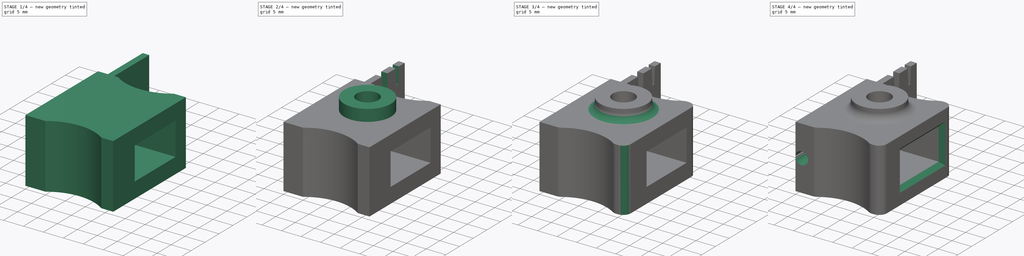
[diagram: build sequence overview — one tinted view per stage of 4, left to right]
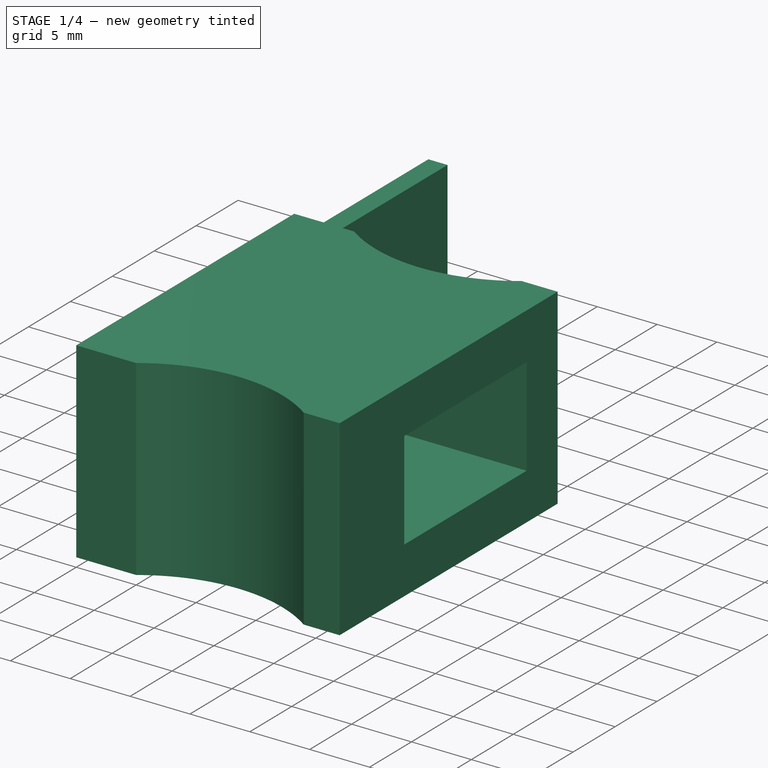
[diagram: stage 1 of 4 — iso view after this stage's code; geometry added in this stage tinted green]
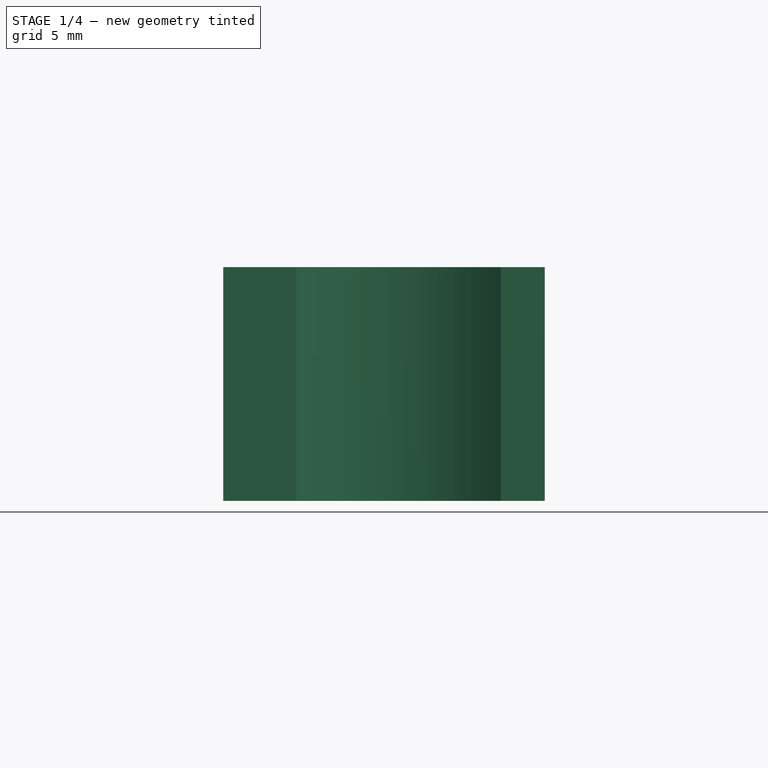
[diagram: stage 1 of 4 — front view after this stage's code; geometry added in this stage tinted green]
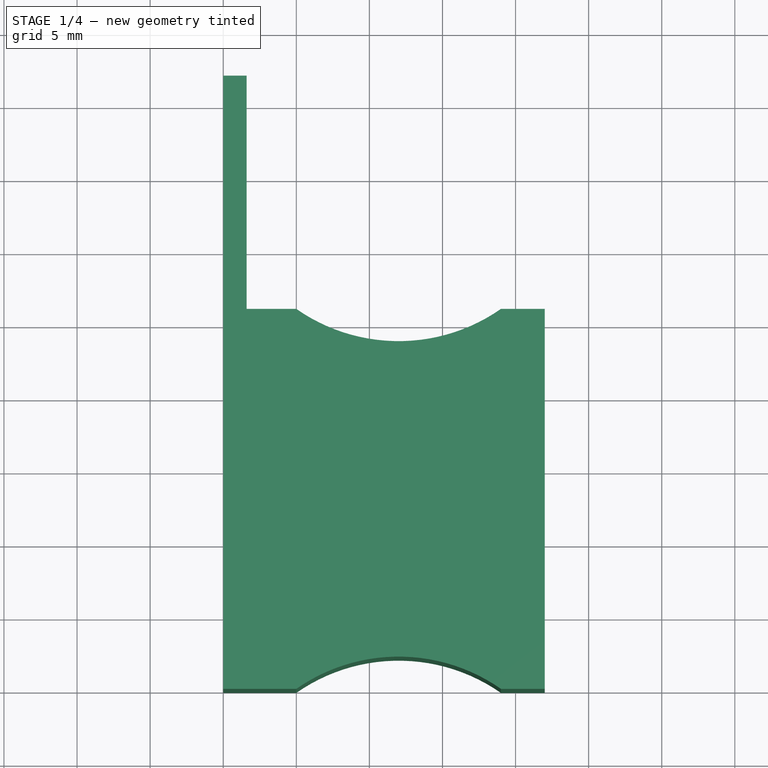
[diagram: stage 1 of 4 — top view after this stage's code; geometry added in this stage tinted green]
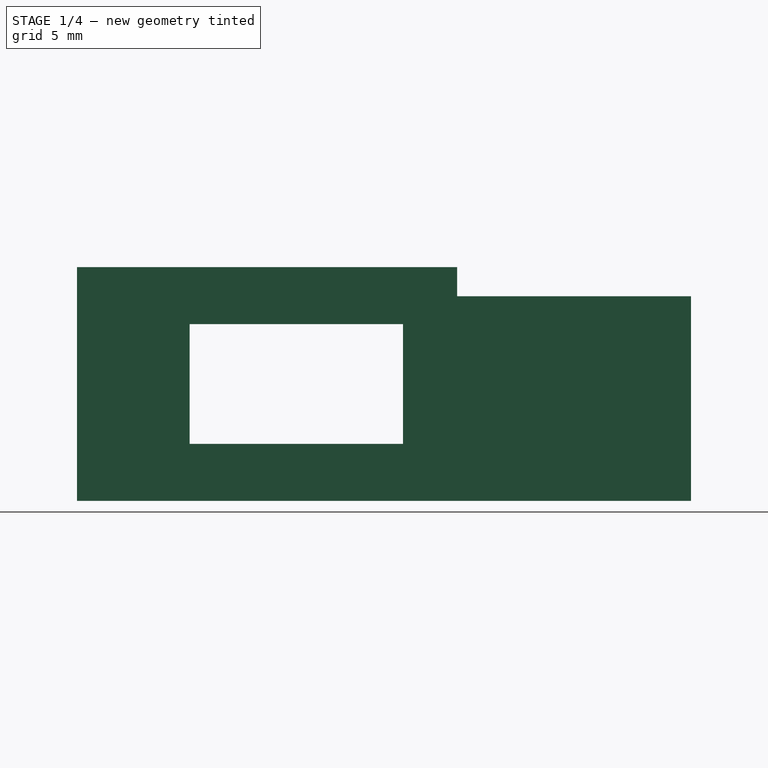
[diagram: stage 1 of 4 — right view after this stage's code; geometry added in this stage tinted green]
FCSTD DOCUMENT  (FreeCAD 0.20R29410 (Git))
Label: Tool_Slider_R5_repaired
License: All rights reserved
LicenseURL: http://en.wikipedia.org/wiki/All_rights_reserved
objects: Sketcher::SketchObject×7, PartDesign::Plane×5, PartDesign::Pocket×5, PartDesign::Chamfer×3, PartDesign::Pad×2, PartDesign::Fillet×2, PartDesign::Body×1
note: 37 computed .brp shape members not serialized (recipe doc carries the construction recipe); baked Part::Feature solids carry a one-line shape summary decoded from their .brp

FEATURE [Sketcher::SketchObject] Sketch
  FullyConstrained = true
  MapMode = 5
  Support = -> [XY_Plane]
  sketch-geometry (11):
    g0: LineSegment StartX=5 StartY=26 StartZ=0 EndX=1.6 EndY=26 EndZ=0
    g1: LineSegment StartX=1.6 StartY=26 StartZ=0 EndX=1.6 EndY=42 EndZ=0
    g2: LineSegment StartX=1.6 StartY=42 StartZ=0 EndX=0 EndY=42 EndZ=0
    g3: LineSegment StartX=0 StartY=42 StartZ=0 EndX=0 EndY=0 EndZ=0
    g4: LineSegment StartX=0 StartY=-1.8e-15 StartZ=0 EndX=5 EndY=-1.8e-15 EndZ=0
    g5: LineSegment StartX=19 StartY=26 StartZ=0 EndX=22 EndY=26 EndZ=0
    g6: LineSegment StartX=22 StartY=26 StartZ=0 EndX=22 EndY=0 EndZ=0
    g7: LineSegment StartX=22 StartY=0 StartZ=0 EndX=19 EndY=0 EndZ=0
    g8: ArcOfCircle CenterX=12 CenterY=36 CenterZ=0 NormalX=0 NormalY=0 NormalZ=1 AngleXU=0 Radius=12.2066 StartAngle=4.10166 EndAngle=5.32311
    g9: ArcOfCircle CenterX=12 CenterY=-10 CenterZ=0 NormalX=0 NormalY=0 NormalZ=1 AngleXU=0 Radius=12.2066 StartAngle=0.96007 EndAngle=2.18152
    g10: LineSegment StartX=22 StartY=26 StartZ=0 EndX=0 EndY=26 EndZ=0
  constraints (34):
    c: Coincident(g0,g1)
    c: Vertical(g1)
    c: Coincident(g1,g2)
    c: Horizontal(g2)
    c: Coincident(g2,g3)
    c: Vertical(g3)
    c: Coincident(g3,g4)
    c: Horizontal(g4)
    c: Horizontal(g5)
    c: Coincident(g5,g6)
    c: Vertical(g6)
    c: Coincident(g6,g7)
    c: Horizontal(g7)
    c: Horizontal(g0)
    c: Coincident(g8,g0)
    c: Coincident(g8,g5)
    c: Coincident(g9,g4)
    c: Coincident(g9,g7)
    c: DistanceY(g1,g1) = 16
    c: DistanceY(g3,g3) = 42
    c: DistanceX(g2,g2) = 1.6
    c: DistanceX(g4,g4) = 5
    c: DistanceX(g3,g6) = 22
    c: DistanceX(g2,g0) = 5
    c: DistanceX(g0,g5) = 14
    c: DistanceX(g4,g7) = 14
    c: DistanceY(g9,g7) = 10
    c: DistanceY(g5,g8) = 10
    c: Coincident(g3,g-1)
    c: PointOnObject(g6,g-1)
    c: Coincident(g10,g5)
    c: PointOnObject(g10,g3)
    c: Horizontal(g10)
    c: PointOnObject(g0,g10)
FEATURE [PartDesign::Pad] Pad
  Direction = (0,0,1)
  Length = 16
  Length2 = 10
  Profile = -> Sketch
  ReferenceAxis = -> Sketch [N_Axis]
  Refine = true
  Type = 0
FEATURE [PartDesign::Plane] DatumPlane
  Length = 60
  MapMode = 5
  Placement = pos=(22,0,0) rot=(0.57735,0.57735,0.57735;2.0944rad)
  ResizeMode = 0
  Support = -> [Pad]
  Width = 60
FEATURE [Sketcher::SketchObject] Sketch001
  ExternalGeometry = -> [Pad]
  FullyConstrained = true
  MapMode = 5
  Placement = pos=(22,0,0) rot=(0.57735,0.57735,0.57735;2.0944rad)
  Support = -> [Pad]
  sketch-geometry (5):
    g0: LineSegment StartX=7.7 StartY=12.1 StartZ=0 EndX=22.3 EndY=12.1 EndZ=0
    g1: LineSegment StartX=22.3 StartY=12.1 StartZ=0 EndX=22.3 EndY=3.9 EndZ=0
    g2: LineSegment StartX=22.3 StartY=3.9 StartZ=0 EndX=7.7 EndY=3.9 EndZ=0
    g3: LineSegment StartX=7.7 StartY=3.9 StartZ=0 EndX=7.7 EndY=12.1 EndZ=0
    g4: LineSegment StartX=0 StartY=8 StartZ=0 EndX=26 EndY=8 EndZ=0
  constraints (15):
    c: Coincident(g0,g1)
    c: Coincident(g1,g2)
    c: Coincident(g2,g3)
    c: Coincident(g3,g0)
    c: Horizontal(g0)
    c: Horizontal(g2)
    c: Vertical(g3)
    c: PointOnObject(g4,g-6)
    c: PointOnObject(g4,g-5)
    c: Horizontal(g4)
    c: DistanceY(g-6,g4) = 8
    c: DistanceY(g1,g1) = 8.2
    c: DistanceX(g0,g0) = 14.6
    c: DistanceX(g-6,g2) = 7.7
    c: Symmetric(g0,g1,g4)
FEATURE [PartDesign::Pocket] Pocket
  BaseFeature = -> Pad
  Direction = (-1,0,0)
  Length = 5
  Length2 = 5
  Profile = -> Sketch001
  ReferenceAxis = -> Sketch001 [N_Axis]
  Refine = true
  Type = 1
FEATURE [PartDesign::Plane] DatumPlane001  label="Oberseite"
  Length = 60
  MapMode = 5
  Placement = pos=(0,0,16) rot=(0,0,1;0rad)
  ResizeMode = 0
  Support = -> [Pocket]
  Width = 60
FEATURE [Sketcher::SketchObject] Sketch002
  ExternalGeometry = -> [Pocket]
  FullyConstrained = true
  MapMode = 5
  Placement = pos=(0,0,16) rot=(0,0,1;0rad)
  Support = -> [DatumPlane001]
  sketch-geometry (4):
    g0: LineSegment StartX=1.6 StartY=26 StartZ=0 EndX=0 EndY=26 EndZ=0
    g1: LineSegment StartX=0 StartY=26 StartZ=0 EndX=0 EndY=42 EndZ=0
    g2: LineSegment StartX=0 StartY=42 StartZ=0 EndX=1.6 EndY=42 EndZ=0
    g3: LineSegment StartX=1.6 StartY=42 StartZ=0 EndX=1.6 EndY=26 EndZ=0
  constraints (10):
    c: Coincident(g0,g1)
    c: Coincident(g1,g2)
    c: Coincident(g2,g3)
    c: Coincident(g3,g0)
    c: Horizontal(g0)
    c: Horizontal(g2)
    c: Vertical(g1)
    c: Vertical(g3)
    c: Coincident(g0,g-3)
    c: Coincident(g1,g-4)
FEATURE [PartDesign::Pocket] Pocket001
  BaseFeature = -> Pocket
  Direction = (0,0,-1)
  Length = 2
  Length2 = 5
  Profile = -> Sketch002
  ReferenceAxis = -> Sketch002 [N_Axis]
  Refine = true
  Type = 0
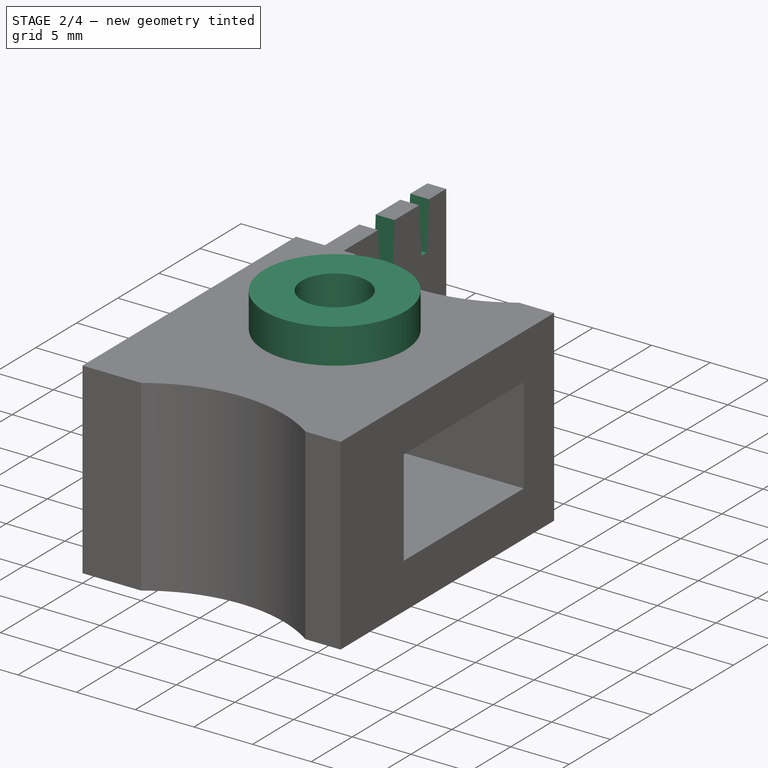
[diagram: stage 2 of 4 — iso view after this stage's code; geometry added in this stage tinted green]
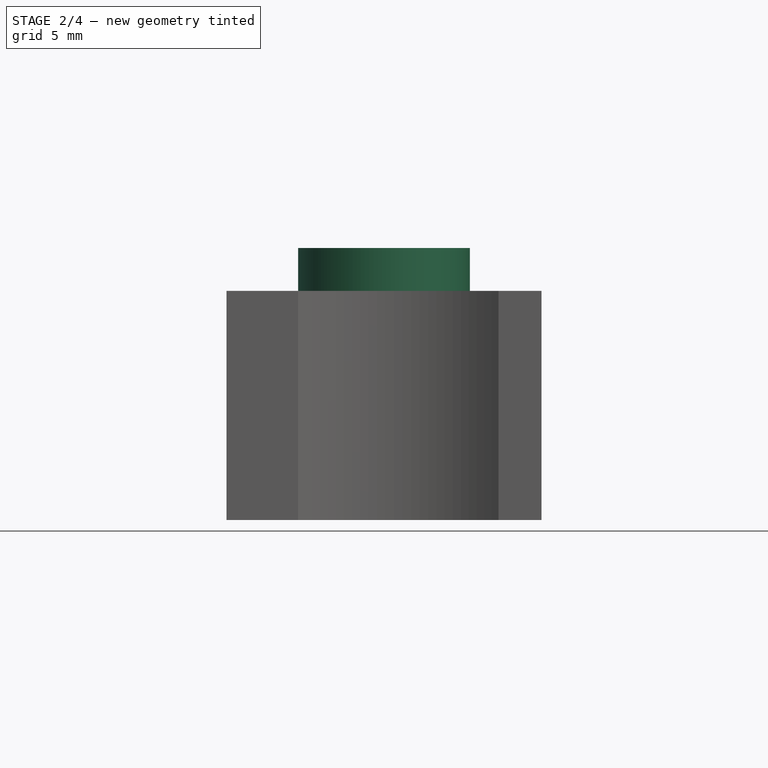
[diagram: stage 2 of 4 — front view after this stage's code; geometry added in this stage tinted green]
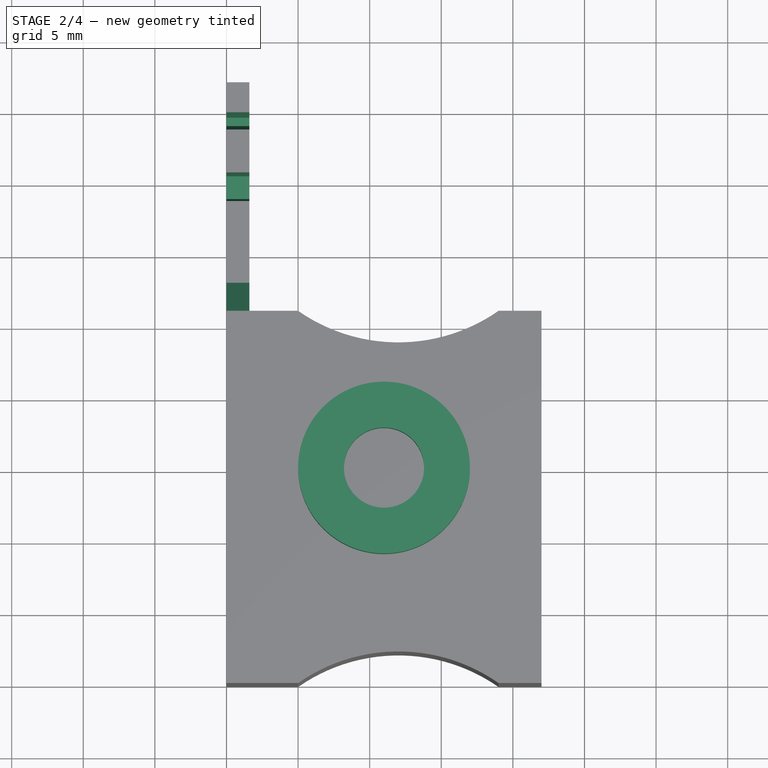
[diagram: stage 2 of 4 — top view after this stage's code; geometry added in this stage tinted green]
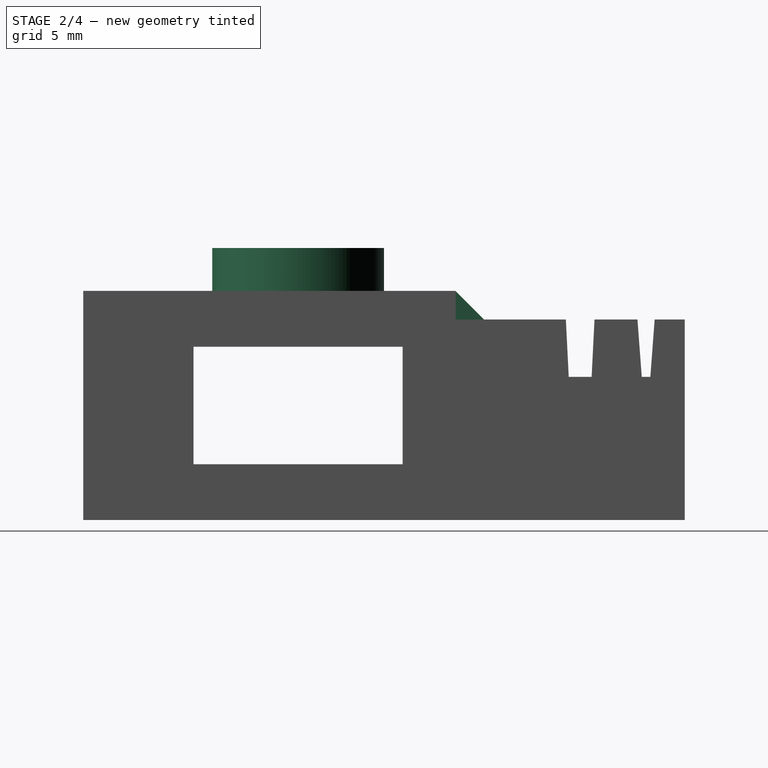
[diagram: stage 2 of 4 — right view after this stage's code; geometry added in this stage tinted green]
FEATURE [PartDesign::Chamfer] Chamfer
  Angle = 45
  Base = -> Pocket001 [Edge41]
  BaseFeature = -> Pocket001
  ChamferType = 0
  FlipDirection = false
  Refine = true
  Size = 1.99
  Size2 = 1
  SupportTransform = false
  UseAllEdges = false
FEATURE [PartDesign::Plane] DatumPlane002  label="Seite Biegefläche"
  Length = 60
  MapMode = 5
  Placement = pos=(1.6,0,0) rot=(0.57735,0.57735,0.57735;2.0944rad)
  ResizeMode = 0
  Support = -> [Chamfer]
  Width = 60
FEATURE [Sketcher::SketchObject] Sketch003
  ExternalGeometry = -> [Chamfer]
  FullyConstrained = true
  MapMode = 5
  Placement = pos=(1.6,0,0) rot=(0.57735,0.57735,0.57735;2.0944rad)
  Support = -> [DatumPlane002]
  sketch-geometry (11):
    g0: LineSegment StartX=26 StartY=10 StartZ=0 EndX=42 EndY=10 EndZ=0
    g1: LineSegment StartX=33.7 StartY=14 StartZ=0 EndX=35.7 EndY=14 EndZ=0
    g2: LineSegment StartX=35.7 StartY=14 StartZ=0 EndX=35.5 EndY=10 EndZ=0
    g3: LineSegment StartX=35.5 StartY=10 StartZ=0 EndX=33.9 EndY=10 EndZ=0
    g4: LineSegment StartX=33.9 StartY=10 StartZ=0 EndX=33.7 EndY=14 EndZ=0
    g5: LineSegment StartX=38.7 StartY=14 StartZ=0 EndX=39.9 EndY=14 EndZ=0
    g6: LineSegment StartX=39.9 StartY=14 StartZ=0 EndX=39.6 EndY=10 EndZ=0
    g7: LineSegment StartX=39.6 StartY=10 StartZ=0 EndX=39 EndY=10 EndZ=0
    g8: LineSegment StartX=39 StartY=10 StartZ=0 EndX=38.7 EndY=14 EndZ=0
    g9: LineSegment StartX=34.7 StartY=14 StartZ=0 EndX=34.7 EndY=10 EndZ=0
    g10: LineSegment StartX=39.3 StartY=14 StartZ=0 EndX=39.3 EndY=10 EndZ=0
  constraints (32):
    c: PointOnObject(g0,g-4)
    c: PointOnObject(g0,g-5)
    c: Horizontal(g0)
    c: DistanceY(g0,g-5) = 4
    c: Horizontal(g1)
    c: Coincident(g1,g2)
    c: Coincident(g2,g3)
    c: Coincident(g3,g4)
    c: Coincident(g4,g1)
    c: Horizontal(g5)
    c: Coincident(g5,g6)
    c: Coincident(g6,g7)
    c: Coincident(g7,g8)
    c: Coincident(g8,g5)
    c: PointOnObject(g1,g-3)
    c: PointOnObject(g5,g-3)
    c: PointOnObject(g2,g0)
    c: PointOnObject(g6,g0)
    c: PointOnObject(g9,g1)
    c: PointOnObject(g9,g3)
    c: PointOnObject(g10,g5)
    c: PointOnObject(g10,g7)
    c: Symmetric(g1,g1,g9)
    c: Symmetric(g3,g2,g9)
    c: Symmetric(g7,g6,g10)
    c: Symmetric(g5,g5,g10)
    c: DistanceX(g5,g5) = 1.2
    c: DistanceX(g7,g6) = 0.6
    c: DistanceX(g3,g2) = 1.6
    c: DistanceX(g1,g1) = 2
    c: DistanceX(g5,g-5) = 2.1
    c: DistanceX(g1,g5) = 3
FEATURE [PartDesign::Pocket] Pocket002
  BaseFeature = -> Chamfer
  Direction = (-1,0,0)
  Length = 5
  Length2 = 5
  Profile = -> Sketch003
  ReferenceAxis = -> Sketch003 [N_Axis]
  Refine = true
  Type = 1
FEATURE [PartDesign::Plane] DatumPlane003  label="Fläche Gewindeaufnahme Messfinger"
  Length = 60
  MapMode = 5
  Placement = pos=(0,-1.8e-15,0) rot=(1,0,0;1.5708rad)
  ResizeMode = 0
  Support = -> [Pocket002]
  Width = 60
FEATURE [Sketcher::SketchObject] Sketch005
  FullyConstrained = true
  MapMode = 5
  Placement = pos=(0,0,16) rot=(0,0,1;0rad)
  Support = -> [DatumPlane001]
  sketch-geometry (2):
    g0: Circle CenterX=11 CenterY=15 CenterZ=0 NormalX=0 NormalY=0 NormalZ=1 AngleXU=0 Radius=2.8
    g1: Circle CenterX=11 CenterY=15 CenterZ=0 NormalX=0 NormalY=0 NormalZ=1 AngleXU=0 Radius=6
  constraints (5):
    c: Coincident(g1,g0)
    c: Diameter(g0) = 5.6
    c: Diameter(g1) = 12
    c: DistanceY(g-1,g0) = 15
    c: DistanceX(g-1,g0) = 11
FEATURE [PartDesign::Pad] Pad001
  BaseFeature = -> Pocket002
  Direction = (0,0,1)
  Length = 3
  Length2 = 10
  Profile = -> Sketch005
  ReferenceAxis = -> Sketch005 [N_Axis]
  Refine = true
  Type = 0
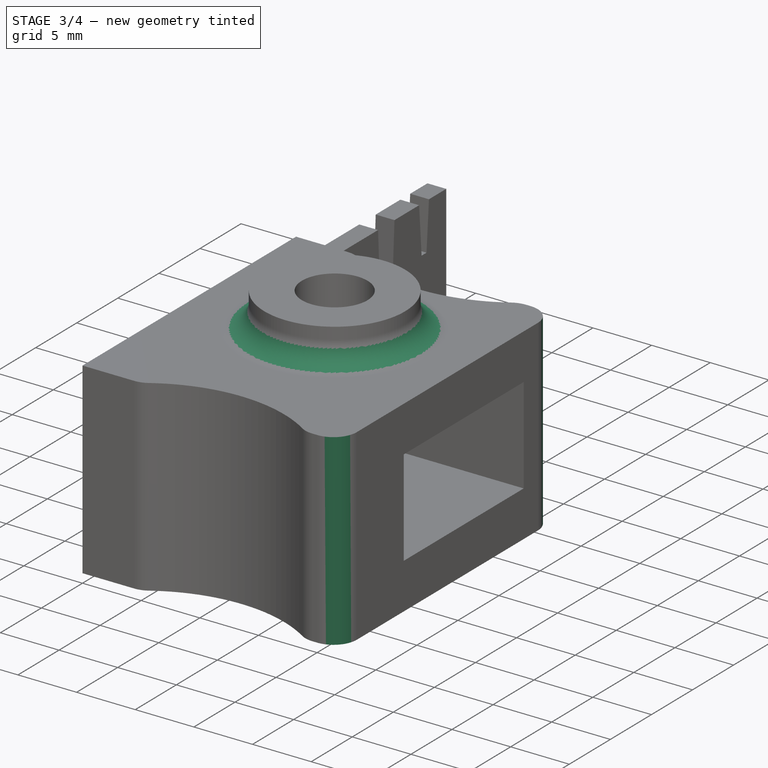
[diagram: stage 3 of 4 — iso view after this stage's code; geometry added in this stage tinted green]
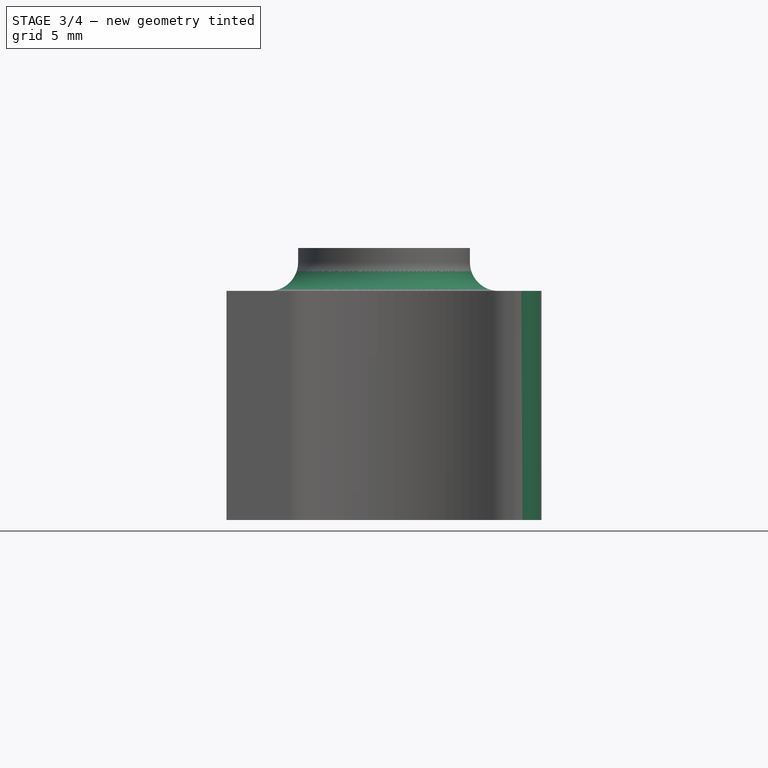
[diagram: stage 3 of 4 — front view after this stage's code; geometry added in this stage tinted green]
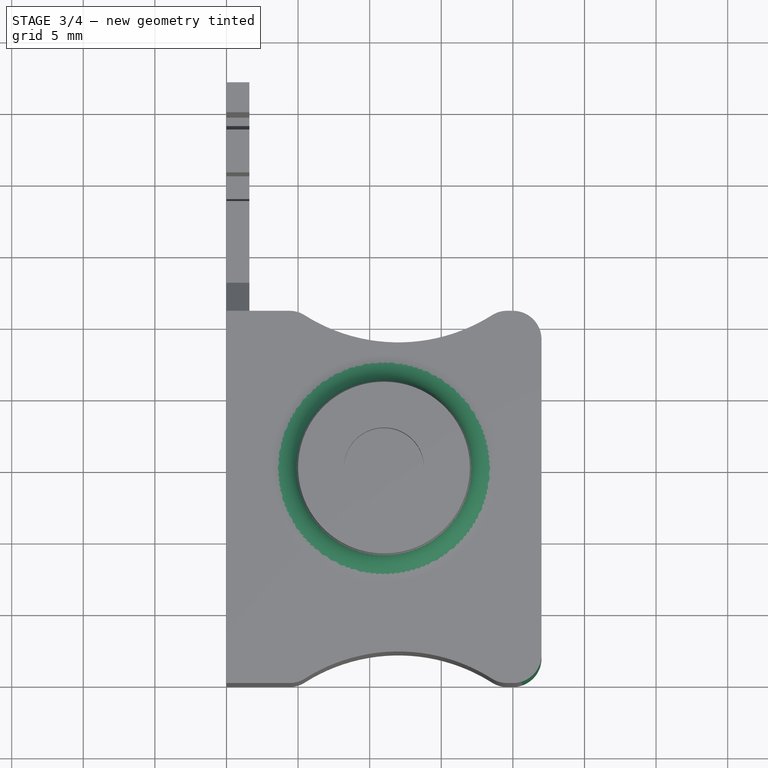
[diagram: stage 3 of 4 — top view after this stage's code; geometry added in this stage tinted green]
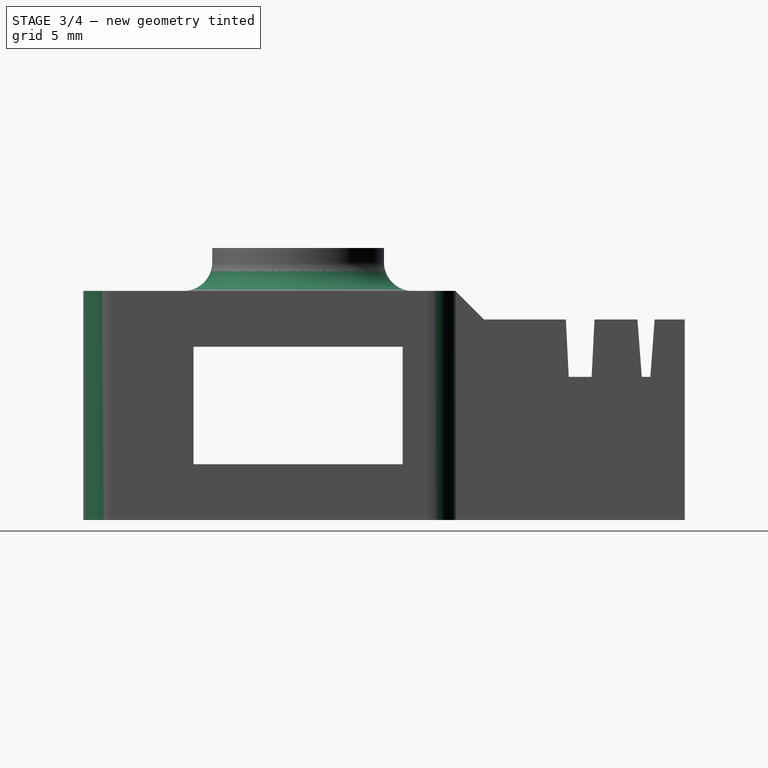
[diagram: stage 3 of 4 — right view after this stage's code; geometry added in this stage tinted green]
FEATURE [Sketcher::SketchObject] Sketch006
  FullyConstrained = false
  MapMode = 5
  Placement = pos=(0,0,16) rot=(0,0,1;0rad)
  Support = -> [DatumPlane001]
  sketch-geometry (7):
    g0: LineSegment StartX=15.8497 StartY=15 StartZ=0 EndX=13.4249 EndY=19.2 EndZ=0
    g1: LineSegment StartX=13.4249 StartY=19.2 StartZ=0 EndX=8.57513 EndY=19.2 EndZ=0
    g2: LineSegment StartX=8.57513 StartY=19.2 StartZ=0 EndX=6.15026 EndY=15 EndZ=0
    g3: LineSegment StartX=6.15026 StartY=15 StartZ=0 EndX=8.57513 EndY=10.8 EndZ=0
    g4: LineSegment StartX=8.57513 StartY=10.8 StartZ=0 EndX=13.4249 EndY=10.8 EndZ=0
    g5: LineSegment StartX=13.4249 StartY=10.8 StartZ=0 EndX=15.8497 EndY=15 EndZ=0
    g6: Circle CenterX=11 CenterY=15 CenterZ=0 NormalX=0 NormalY=0 NormalZ=1 AngleXU=0 Radius=4.84974
  constraints (15):
    c: Coincident(g0,g1)
    c: Coincident(g1,g2)
    c: Coincident(g2,g3)
    c: Coincident(g3,g4)
    c: Coincident(g4,g5)
    c: Coincident(g5,g0)
    c: Equal(g0, g1-g5) x5
    c: PointOnObject(g0,g6)
    c: PointOnObject(g1,g6)
    c: PointOnObject(g2,g6)
    c: PointOnObject(g3,g6)
    c: PointOnObject(g4,g6)
    c: PointOnObject(g5,g6)
    c: Horizontal(g1)
    c: DistanceY(g4,g0) = 8.4
FEATURE [PartDesign::Pocket] Pocket003
  BaseFeature = -> Pad001
  Direction = (0,0,-1)
  Length = 7
  Length2 = 5
  Profile = -> Sketch006
  ReferenceAxis = -> Sketch006 [N_Axis]
  Refine = true
  Type = 0
FEATURE [PartDesign::Fillet] Fillet
  Base = -> Pocket003 [Edge61]
  BaseFeature = -> Pocket003
  Radius = 2
  Refine = true
  SupportTransform = false
  UseAllEdges = false
FEATURE [PartDesign::Fillet] Fillet001
  Base = -> Fillet [Edge20,Edge13,Edge12,Edge40,Edge47,Edge45]
  BaseFeature = -> Fillet
  Radius = 2
  Refine = true
  SupportTransform = false
  UseAllEdges = false
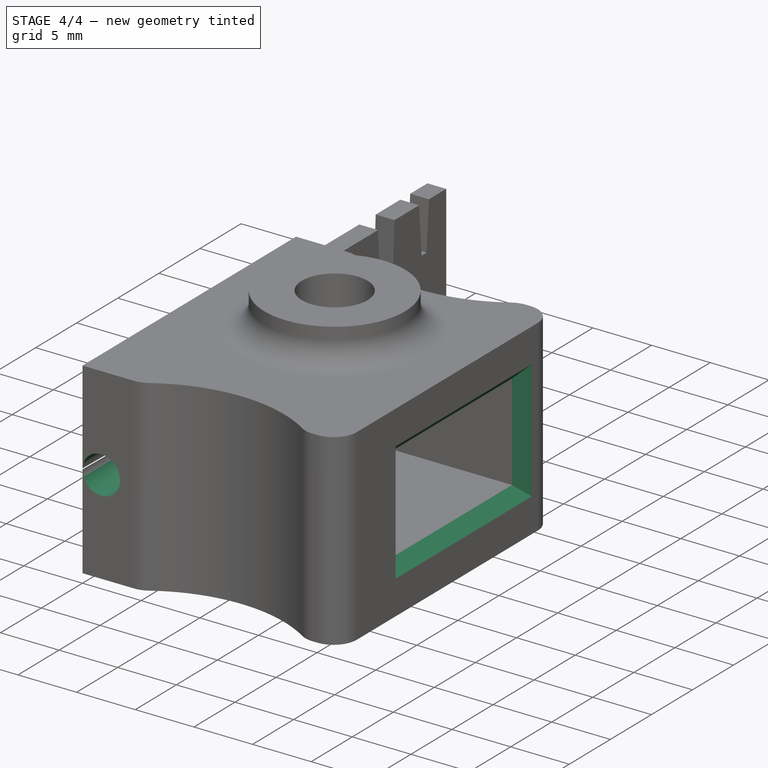
[diagram: stage 4 of 4 — iso view after this stage's code; geometry added in this stage tinted green]
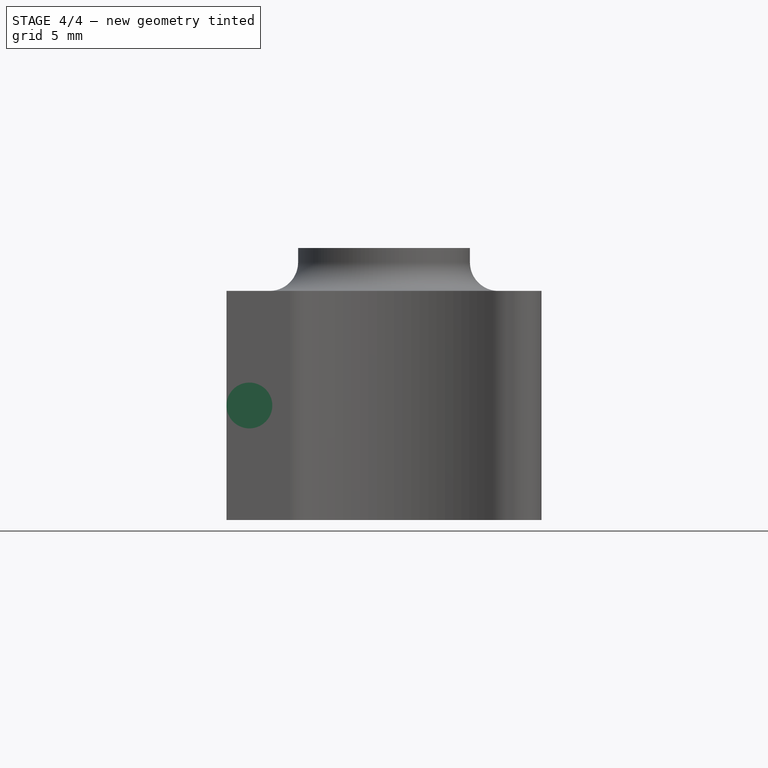
[diagram: stage 4 of 4 — front view after this stage's code; geometry added in this stage tinted green]
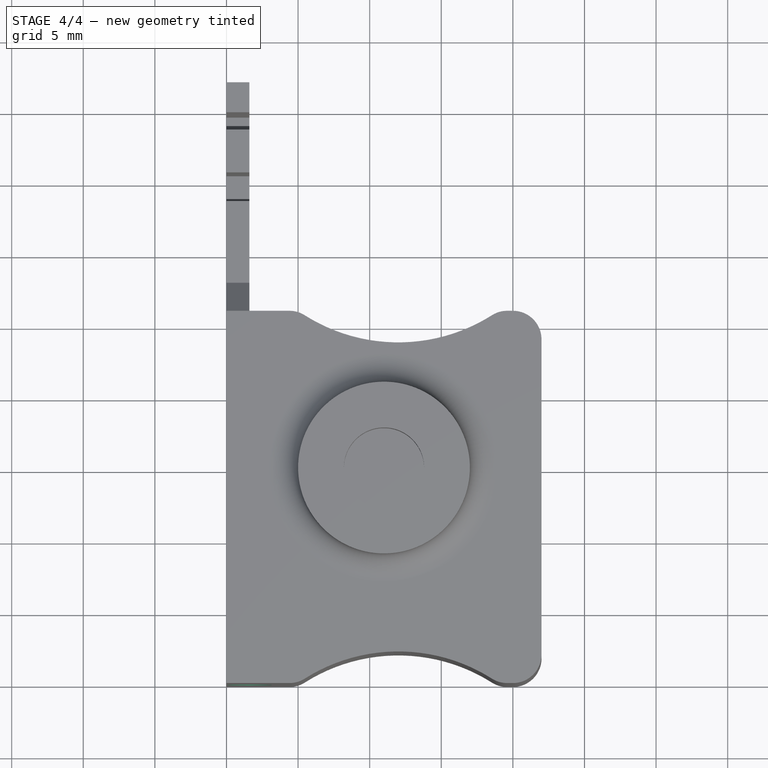
[diagram: stage 4 of 4 — top view after this stage's code; geometry added in this stage tinted green]
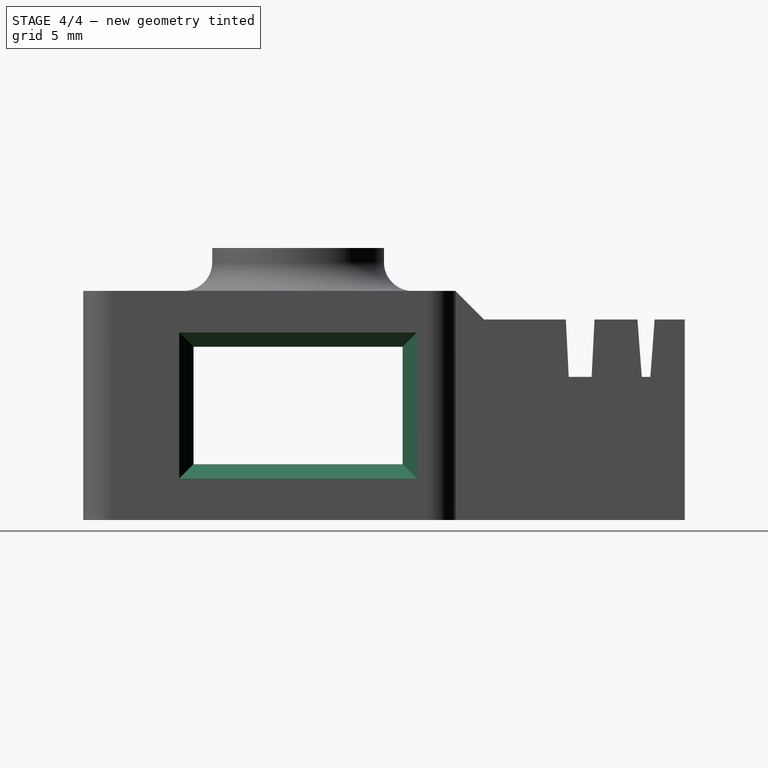
[diagram: stage 4 of 4 — right view after this stage's code; geometry added in this stage tinted green]
FEATURE [PartDesign::Chamfer] Chamfer001
  Angle = 45
  Base = -> Fillet001 [Edge45,Edge44,Edge43,Edge46]
  BaseFeature = -> Fillet001
  ChamferType = 0
  FlipDirection = false
  Refine = true
  Size = 1
  Size2 = 1
  SupportTransform = false
  UseAllEdges = false
FEATURE [PartDesign::Chamfer] Chamfer002
  Angle = 45
  Base = -> Chamfer001 [Edge95,Edge84,Edge92,Edge96]
  BaseFeature = -> Chamfer001
  ChamferType = 0
  FlipDirection = false
  Refine = true
  Size = 1
  Size2 = 1
  SupportTransform = false
  UseAllEdges = false
FEATURE [PartDesign::Plane] DatumPlane004  label="Fläche Gewindeeinsatz"
  Length = 60
  MapMode = 5
  Placement = pos=(0,-1.8e-15,0) rot=(1,0,0;1.5708rad)
  ResizeMode = 0
  Support = -> [Chamfer002]
  Width = 60
FEATURE [Sketcher::SketchObject] Sketch007
  FullyConstrained = true
  MapMode = 5
  Placement = pos=(0,-1.8e-15,0) rot=(1,0,0;1.5708rad)
  Support = -> [DatumPlane004]
  sketch-geometry (1):
    g0: Circle CenterX=1.6 CenterY=8 CenterZ=0 NormalX=0 NormalY=0 NormalZ=1 AngleXU=0 Radius=1.6
  constraints (3):
    c: Diameter(g0) = 3.2
    c: DistanceY(g-1,g0) = 8
    c: DistanceX(g-1,g0) = 1.6
FEATURE [PartDesign::Pocket] Pocket004  label="Loch Gewindeeinsatz"
  BaseFeature = -> Chamfer002
  Direction = (0,1,-2e-16)
  Length = 4.5
  Length2 = 5
  Profile = -> Sketch007
  ReferenceAxis = -> Sketch007 [N_Axis]
  Refine = true
  Type = 0
FEATURE [PartDesign::Body] Body
  Group = -> [Sketch,Pad,DatumPlane,Sketch001,Pocket,DatumPlane001,Sketch002,Pocket001,Chamfer,DatumPlane002,Sketch003,Pocket002,DatumPlane003,Sketch005,Pad001,Sketch006,Pocket003,Fillet,Fillet001,Chamfer001,Chamfer002,DatumPlane004,Sketch007,Pocket004]
  Origin = -> Origin
  Tip = -> Pocket004
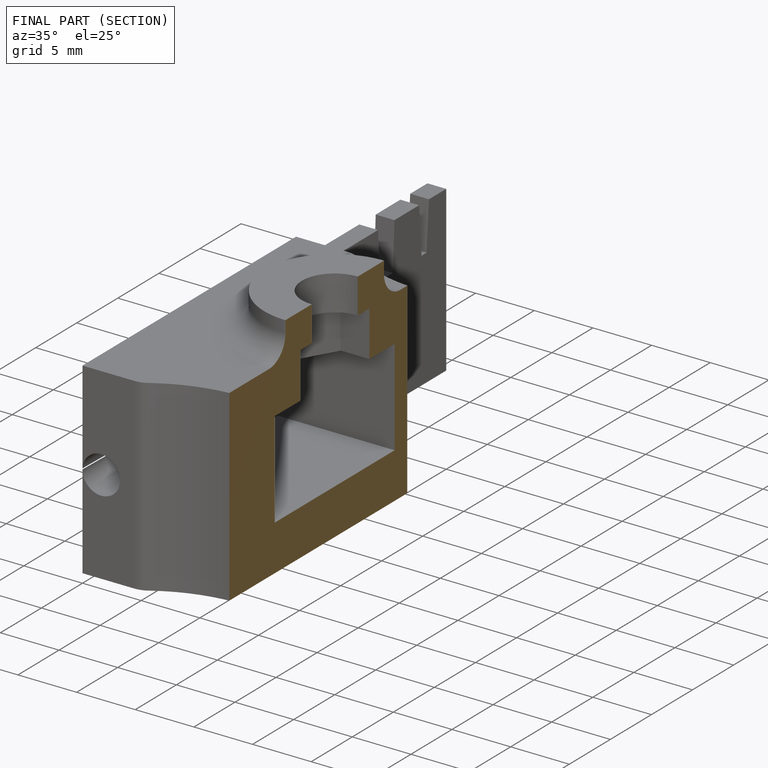
[diagram: finished part — half-section view (interior)]
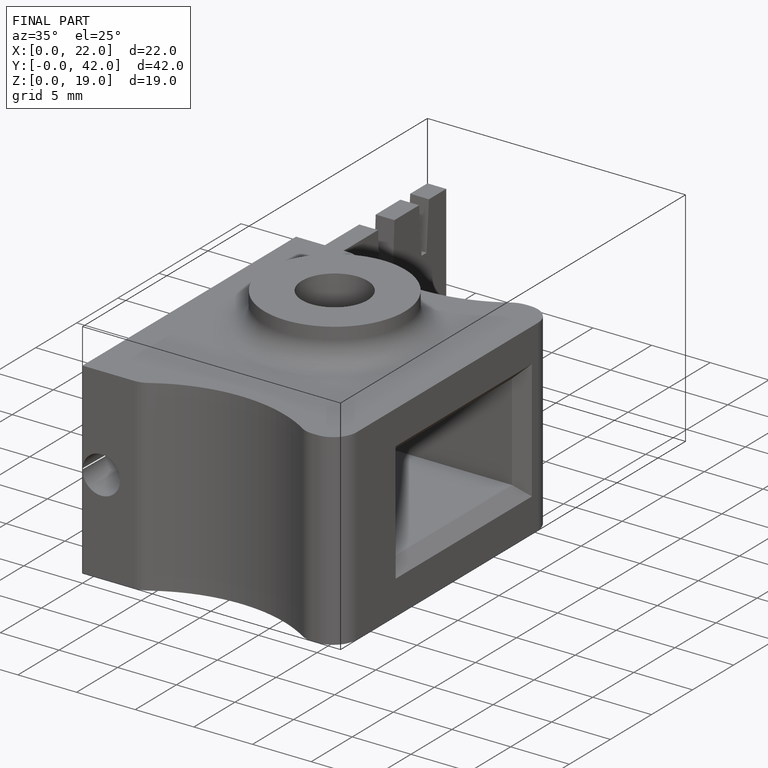
[diagram: finished part — iso view with bounding-box wireframe]
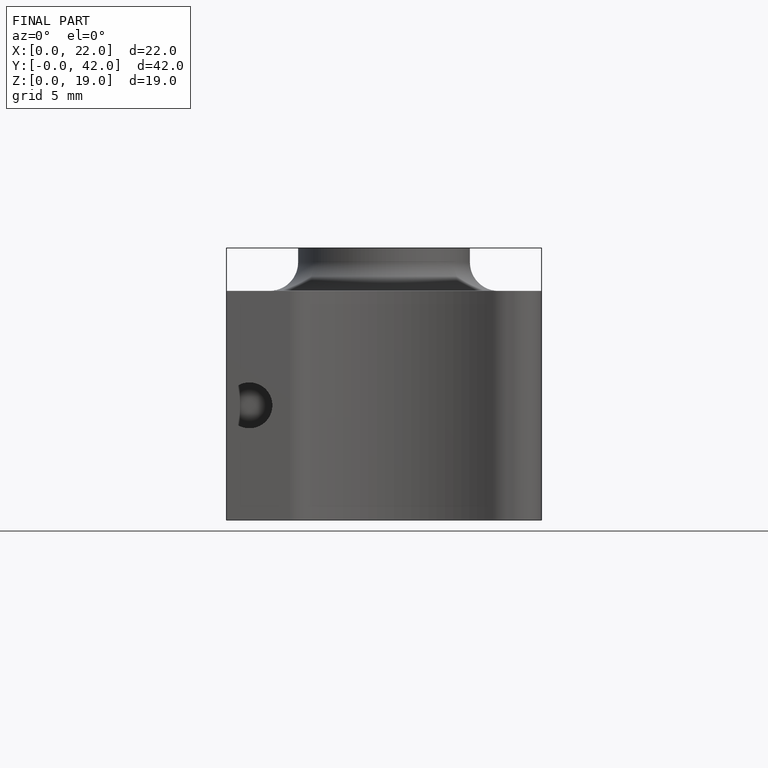
[diagram: finished part — front view with bounding-box wireframe]
